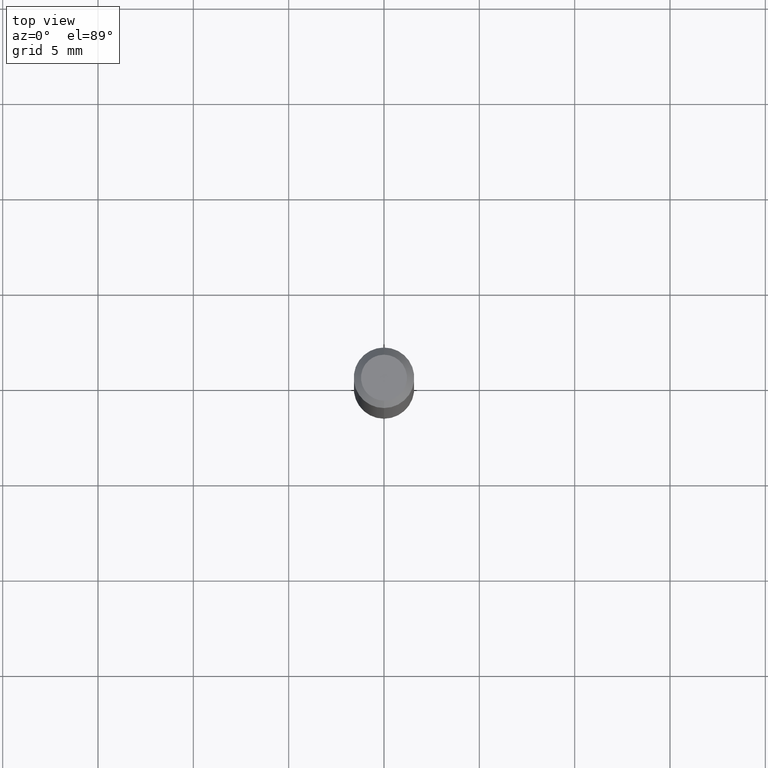
[diagram: clean part render]
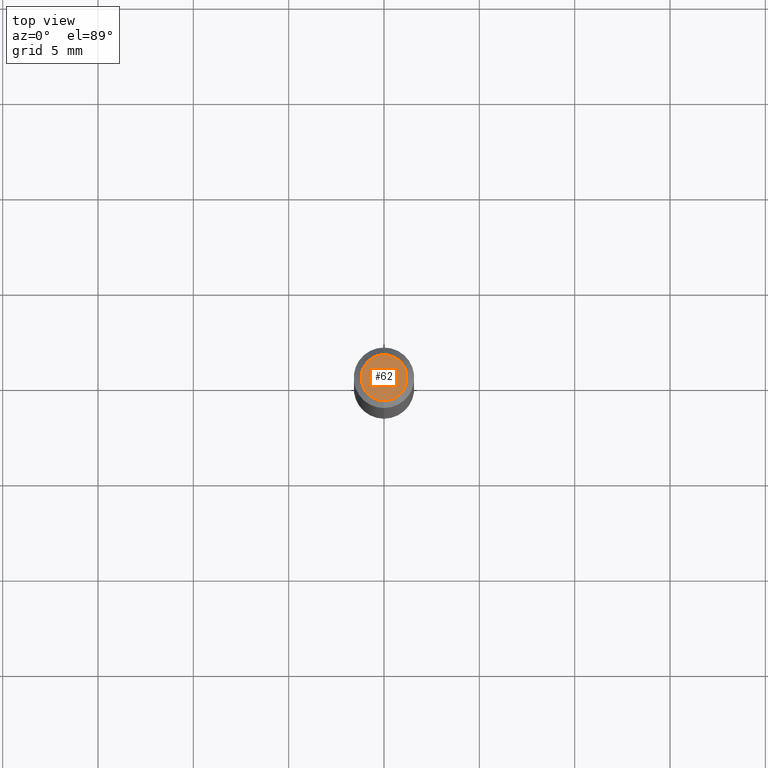
[diagram: same view with one face highlighted and labeled with its STEP entity id]
A machine part, top view. The second image highlights one B-rep face of the part: STEP entity #62.
In plain terms, the highlighted planar face has unit normal (0, -0, -1).
Its self-contained STEP definition (entity closure, byte-faithful):
#19 = CARTESIAN_POINT ( 'NONE',  ( 3.840629472727447874E-16, 0.04749999999999999362, -1.747056831868805136E-16 ) ) ;
#37 = VERTEX_POINT ( 'NONE', #261 ) ;
#61 = AXIS2_PLACEMENT_3D ( 'NONE', #379, #195, #152 ) ;
#62 = ADVANCED_FACE ( 'NONE', ( #461 ), #148, .F. ) ;
#84 = DIRECTION ( 'NONE',  ( 2.445470594822245801E-29, -3.491478777413001965E-15, -1.000000000000000000 ) ) ;
#125 = ORIENTED_EDGE ( 'NONE', *, *, #488, .T. ) ;
#137 = DIRECTION ( 'NONE',  ( -2.445470594822246081E-29, 3.491478777413001570E-15, 1.000000000000000000 ) ) ;
#148 = PLANE ( 'NONE',  #272 ) ;
#152 = DIRECTION ( 'NONE',  ( -6.982962677686266711E-15, -1.000000000000000000, 3.491478777413001965E-15 ) ) ;
#195 = DIRECTION ( 'NONE',  ( -2.445470594822246081E-29, 3.491478777413001570E-15, 1.000000000000000000 ) ) ;
#197 = EDGE_CURVE ( 'NONE', #37, #508, #356, .T. ) ;
#215 = AXIS2_PLACEMENT_3D ( 'NONE', #476, #137, #284 ) ;
#261 = CARTESIAN_POINT ( 'NONE',  ( -3.773273898774340269E-16, -0.04749999999999999362, 1.569848006673546198E-16 ) ) ;
#272 = AXIS2_PLACEMENT_3D ( 'NONE', #414, #84, #492 ) ;
#284 = DIRECTION ( 'NONE',  ( -6.982962677686266711E-15, -1.000000000000000000, 3.491478777413001965E-15 ) ) ;
#353 = ORIENTED_EDGE ( 'NONE', *, *, #197, .T. ) ;
#356 = CIRCLE ( 'NONE', #61, 0.04749999999999999362 ) ;
#379 = CARTESIAN_POINT ( 'NONE',  ( 2.166794855790002896E-46, -3.093604261697681097E-32, -8.860441259762933072E-18 ) ) ;
#414 = CARTESIAN_POINT ( 'NONE',  ( 3.316907271900976096E-16, 0.04749999999999999362, -1.702754625569990278E-16 ) ) ;
#427 = EDGE_LOOP ( 'NONE', ( #125, #353 ) ) ;
#461 = FACE_OUTER_BOUND ( 'NONE', #427, .T. ) ;
#470 = CIRCLE ( 'NONE', #215, 0.04749999999999999362 ) ;
#476 = CARTESIAN_POINT ( 'NONE',  ( 2.166794855790002896E-46, -3.093604261697681097E-32, -8.860441259762933072E-18 ) ) ;
#488 = EDGE_CURVE ( 'NONE', #508, #37, #470, .T. ) ;
#492 = DIRECTION ( 'NONE',  ( 6.982962677686265922E-15, 1.000000000000000000, -3.491478777413001965E-15 ) ) ;
#508 = VERTEX_POINT ( 'NONE', #19 ) ;